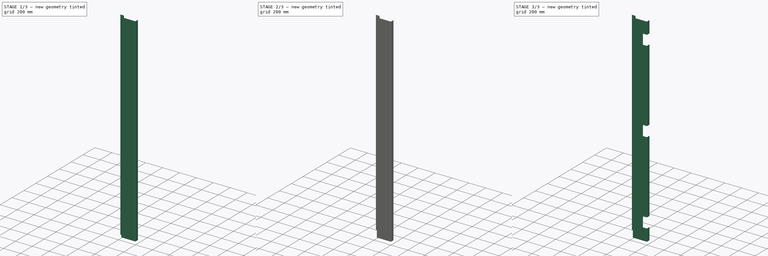
[diagram: build sequence overview — one tinted view per stage of 3, left to right]
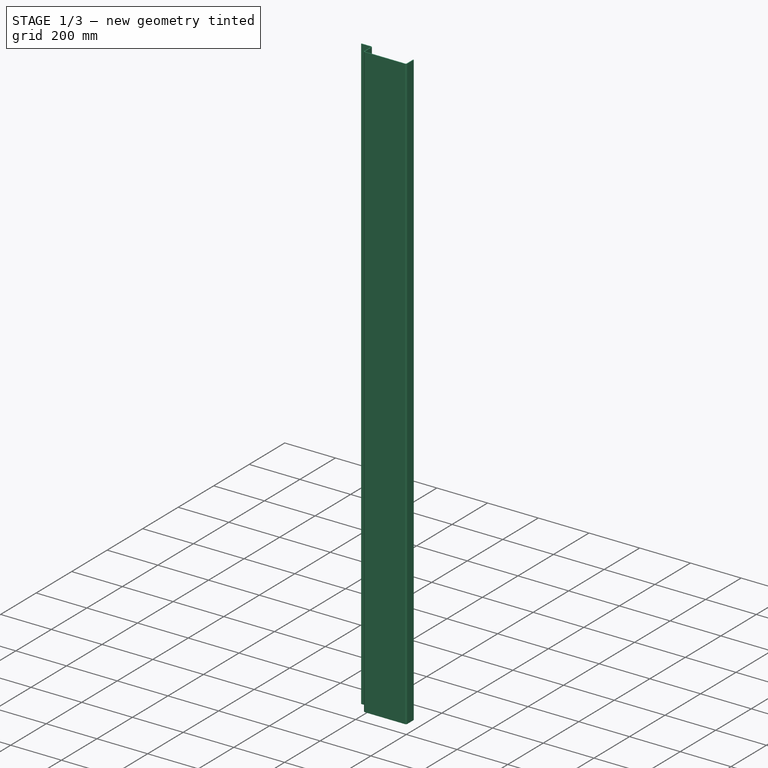
[diagram: stage 1 of 3 — iso view after this stage's code; geometry added in this stage tinted green]
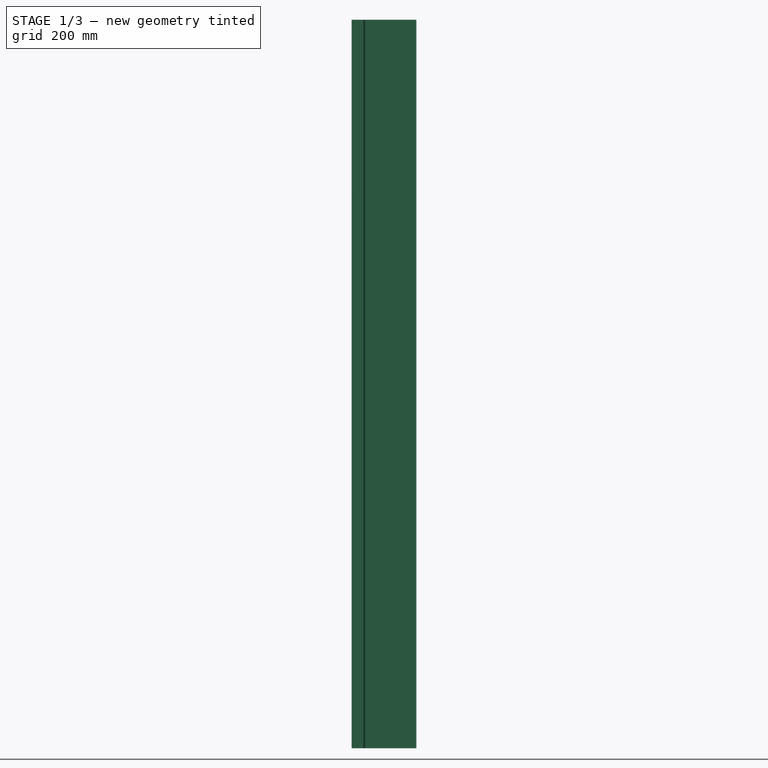
[diagram: stage 1 of 3 — front view after this stage's code; geometry added in this stage tinted green]
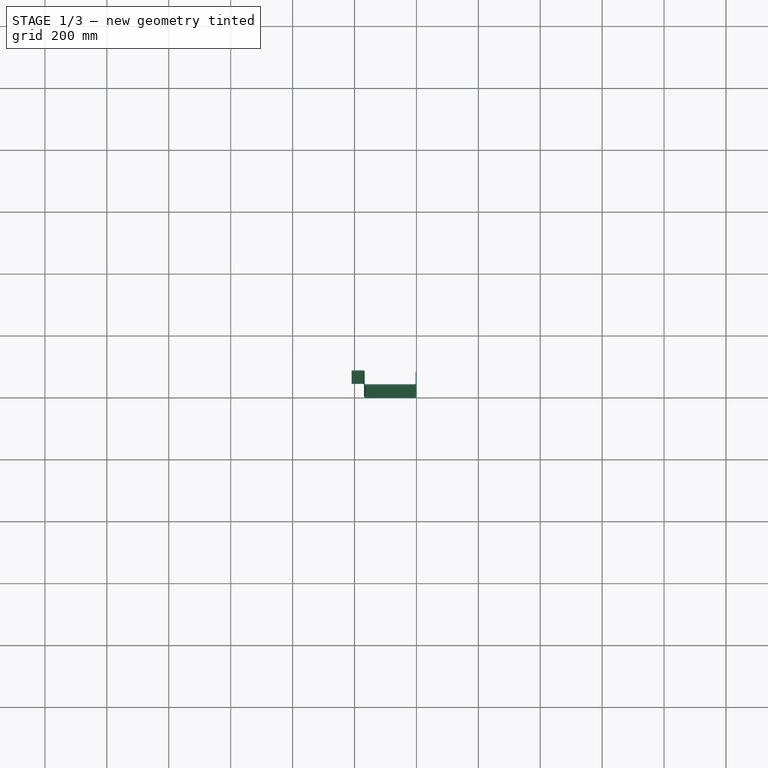
[diagram: stage 1 of 3 — top view after this stage's code; geometry added in this stage tinted green]
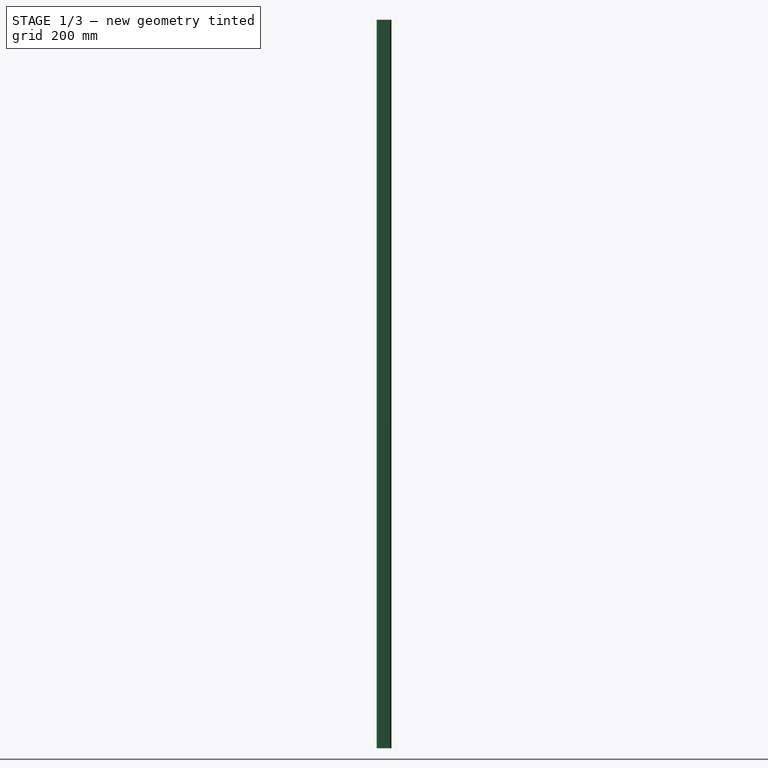
[diagram: stage 1 of 3 — right view after this stage's code; geometry added in this stage tinted green]
FCSTD DOCUMENT  (FreeCAD 0.18R4 (GitTag))
Label: front-member_vertical-2
License: All rights reserved
LicenseURL: http://en.wikipedia.org/wiki/All_rights_reserved
objects: Sketcher::SketchObject×4, PartDesign::Fillet×3, PartDesign::Pad×2, PartDesign::Pocket×2, PartDesign::LinearPattern×1, PartDesign::Body×1
note: 17 computed .brp shape members not serialized (recipe doc carries the construction recipe); baked Part::Feature solids carry a one-line shape summary decoded from their .brp

FEATURE [Sketcher::SketchObject] Sketch
  MapMode = 5
  Support = -> [XY_Plane]
  sketch-geometry (10):
    g0: LineSegment StartX=0 StartY=42 StartZ=0 EndX=0 EndY=0 EndZ=0
    g1: LineSegment StartX=0 StartY=0 StartZ=0 EndX=-169.5 EndY=0 EndZ=0
    g2: LineSegment StartX=-169.5 StartY=0 StartZ=0 EndX=-169.5 EndY=45 EndZ=0
    g3: LineSegment StartX=-3 StartY=42 StartZ=0 EndX=-3 EndY=3 EndZ=0
    g4: LineSegment StartX=-3 StartY=3 StartZ=0 EndX=-166.5 EndY=3 EndZ=0
    g5: LineSegment StartX=-166.5 StartY=3 StartZ=0 EndX=-166.5 EndY=48 EndZ=0
    g6: LineSegment StartX=-3 StartY=42 StartZ=0 EndX=0 EndY=42 EndZ=0
    g7: LineSegment StartX=-169.5 StartY=45 StartZ=0 EndX=-209.5 EndY=45 EndZ=0
    g8: LineSegment StartX=-209.5 StartY=45 StartZ=0 EndX=-209.5 EndY=48 EndZ=0
    g9: LineSegment StartX=-209.5 StartY=48 StartZ=0 EndX=-166.5 EndY=48 EndZ=0
  constraints (29):
    c: Coincident(g6,g0)
    c: Coincident(g0,g1)
    c: Coincident(g1,g2)
    c: Horizontal(g1)
    c: Vertical(g0)
    c: Vertical(g2)
    c: Coincident(g3,g4)
    c: Coincident(g4,g5)
    c: Horizontal(g4)
    c: Vertical(g3)
    c: Vertical(g5)
    c: Coincident(g3,g6)
    c: DistanceY(g0,g3) = 3
    c: DistanceX(g3,g0) = 3
    c: DistanceX(g1,g1) = 169.5
    c: Coincident(g7,g8)
    c: Coincident(g8,g9)
    c: Horizontal(g7)
    c: Horizontal(g9)
    c: Vertical(g8)
    c: DistanceY(g7,g8) = 3
    c: Coincident(g9,g5)
    c: DistanceX(g9,g9) = 43
    c: DistanceY(g1,g5) = 48
    c: Coincident(g2,g7)
    c: DistanceX(g2,g5) = 3
    c: DistanceY(g0,g0) = 42
    c: Horizontal(g6)
    c: Coincident(g0,g-1)
FEATURE [PartDesign::Pad] Pad
  Length = 2353
  Length2 = 100
  Profile = -> Sketch
  Refine = true
  Type = 0
FEATURE [PartDesign::Fillet] Fillet
  Base = -> Pad [Edge23,Edge26,Edge11]
  BaseFeature = -> Pad
  Radius = 3
FEATURE [PartDesign::Fillet] Fillet001
  Base = -> Fillet [Edge3,Edge19,Edge35]
  BaseFeature = -> Fillet
  Radius = 6
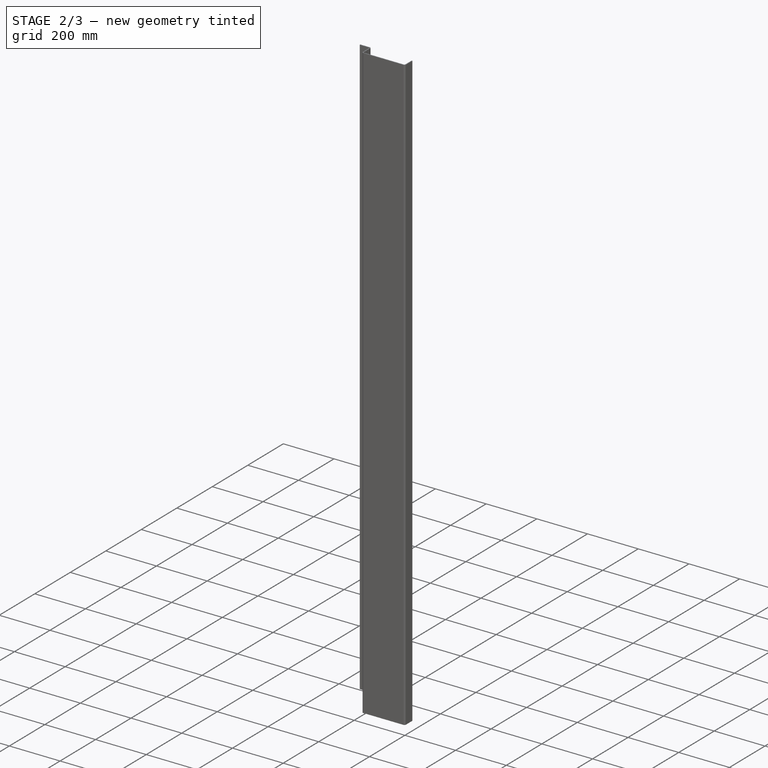
[diagram: stage 2 of 3 — iso view after this stage's code; geometry added in this stage tinted green]
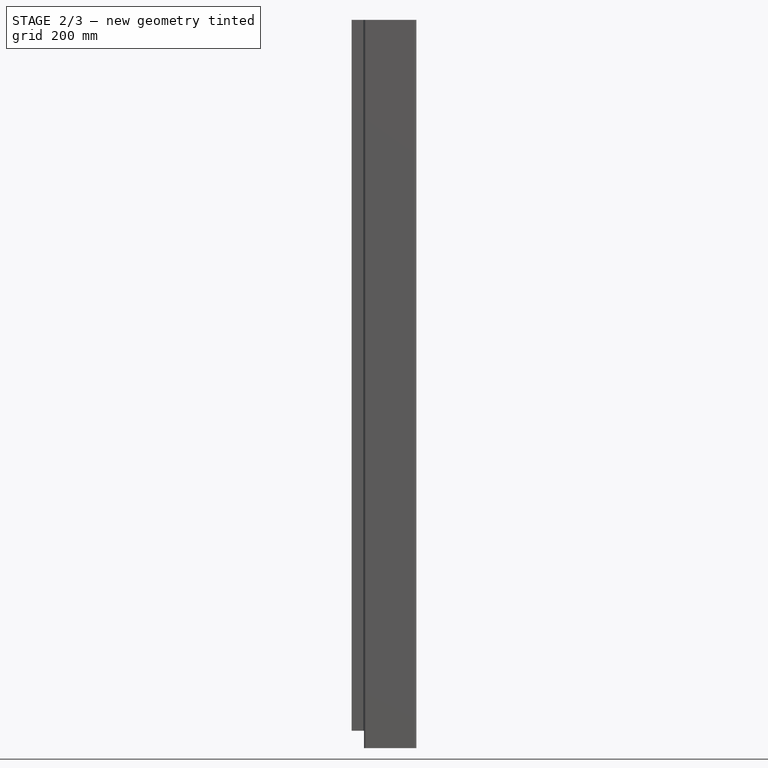
[diagram: stage 2 of 3 — front view after this stage's code; geometry added in this stage tinted green]
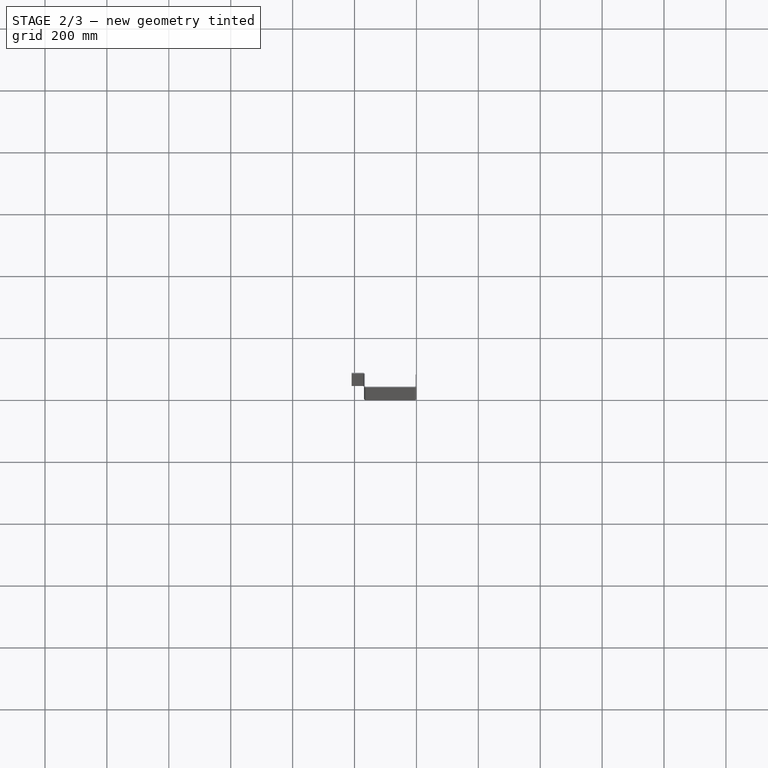
[diagram: stage 2 of 3 — top view after this stage's code; geometry added in this stage tinted green]
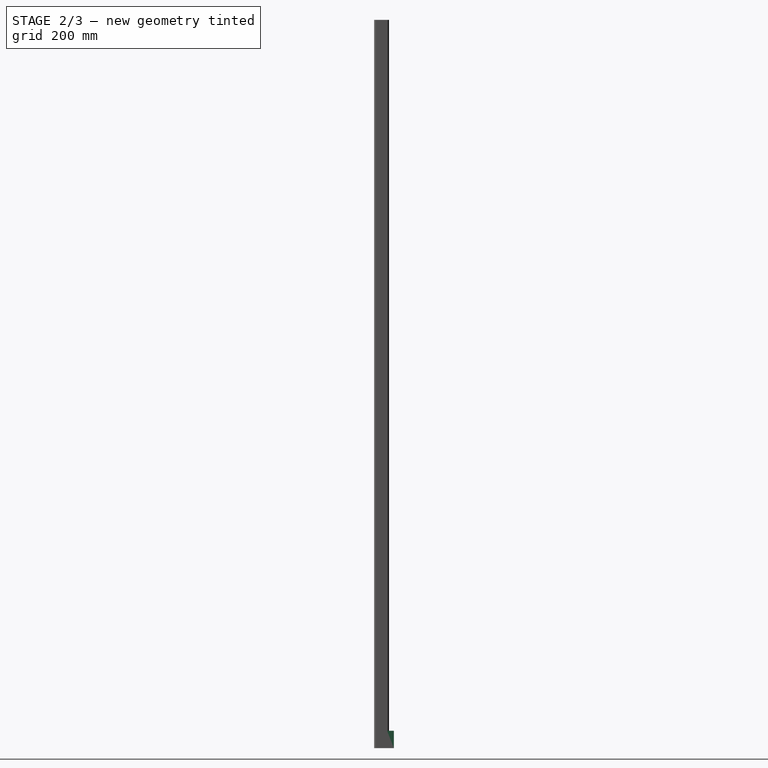
[diagram: stage 2 of 3 — right view after this stage's code; geometry added in this stage tinted green]
FEATURE [Sketcher::SketchObject] Sketch001
  ExternalGeometry = -> [Fillet001]
  MapMode = 5
  Placement = pos=(0,48,0) rot=(0,0.707107,0.707107;3.14159rad)
  Support = -> [Fillet001]
  sketch-geometry (4):
    g0: LineSegment StartX=166.5 StartY=0 StartZ=0 EndX=266.5 EndY=0 EndZ=0
    g1: LineSegment StartX=266.5 StartY=0 StartZ=0 EndX=266.5 EndY=56 EndZ=0
    g2: LineSegment StartX=266.5 StartY=56 StartZ=0 EndX=166.5 EndY=56 EndZ=0
    g3: LineSegment StartX=166.5 StartY=56 StartZ=0 EndX=166.5 EndY=0 EndZ=0
  constraints (11):
    c: Coincident(g0,g1)
    c: Coincident(g1,g2)
    c: Coincident(g2,g3)
    c: Coincident(g3,g0)
    c: Horizontal(g0)
    c: Horizontal(g2)
    c: Vertical(g1)
    c: Vertical(g3)
    c: Coincident(g0,g-4)
    c: DistanceY(g1,g1) = 56
    c: DistanceX(g0,g0) = 100
FEATURE [PartDesign::Pocket] Pocket
  BaseFeature = -> Fillet001
  Length = 6
  Length2 = 100
  Profile = -> Sketch001
  Refine = true
  Type = 0
FEATURE [Sketcher::SketchObject] Sketch002
  ExternalGeometry = -> [Pocket]
  MapMode = 5
  Placement = pos=(0,1.24e-14,56) rot=(1,0,0;3.14159rad)
  Support = -> [Pocket]
  sketch-geometry (4):
    g0: LineSegment StartX=-169.5 StartY=-42 StartZ=0 EndX=-166.5 EndY=-42 EndZ=0
    g1: LineSegment StartX=-166.5 StartY=-42 StartZ=0 EndX=-166.5 EndY=-64 EndZ=0
    g2: LineSegment StartX=-166.5 StartY=-64 StartZ=0 EndX=-169.5 EndY=-64 EndZ=0
    g3: LineSegment StartX=-169.5 StartY=-64 StartZ=0 EndX=-169.5 EndY=-42 EndZ=0
  constraints (11):
    c: Coincident(g0,g1)
    c: Coincident(g1,g2)
    c: Coincident(g2,g3)
    c: Coincident(g3,g0)
    c: Horizontal(g0)
    c: Horizontal(g2)
    c: Vertical(g1)
    c: Vertical(g3)
    c: Coincident(g0,g-3)
    c: PointOnObject(g-3,g1)
    c: DistanceY(g1,g1) = 22
FEATURE [PartDesign::Pad] Pad001
  BaseFeature = -> Pocket
  Length = 56
  Length2 = 100
  Profile = -> Sketch002
  Refine = true
  Type = 0
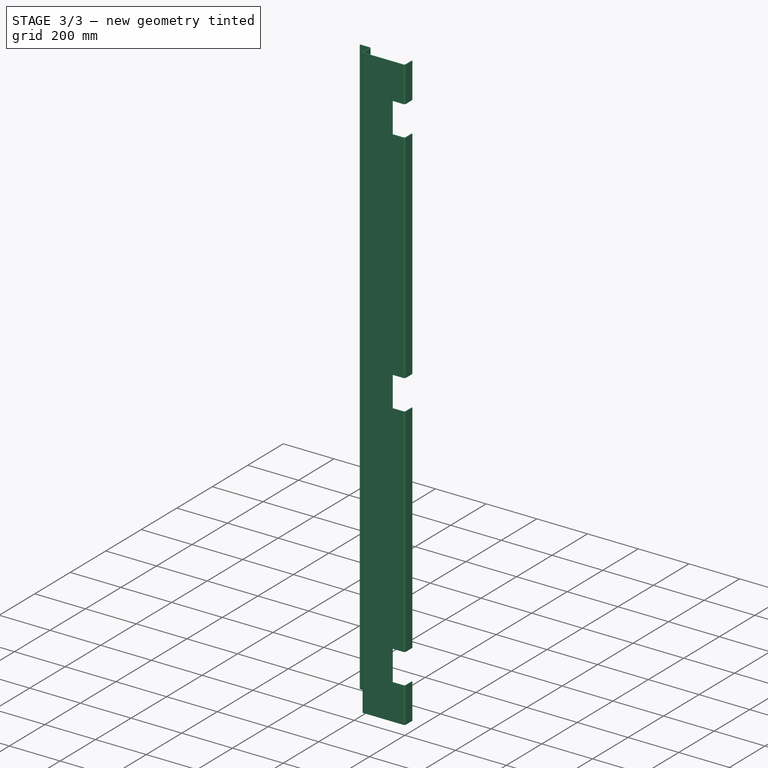
[diagram: stage 3 of 3 — iso view after this stage's code; geometry added in this stage tinted green]
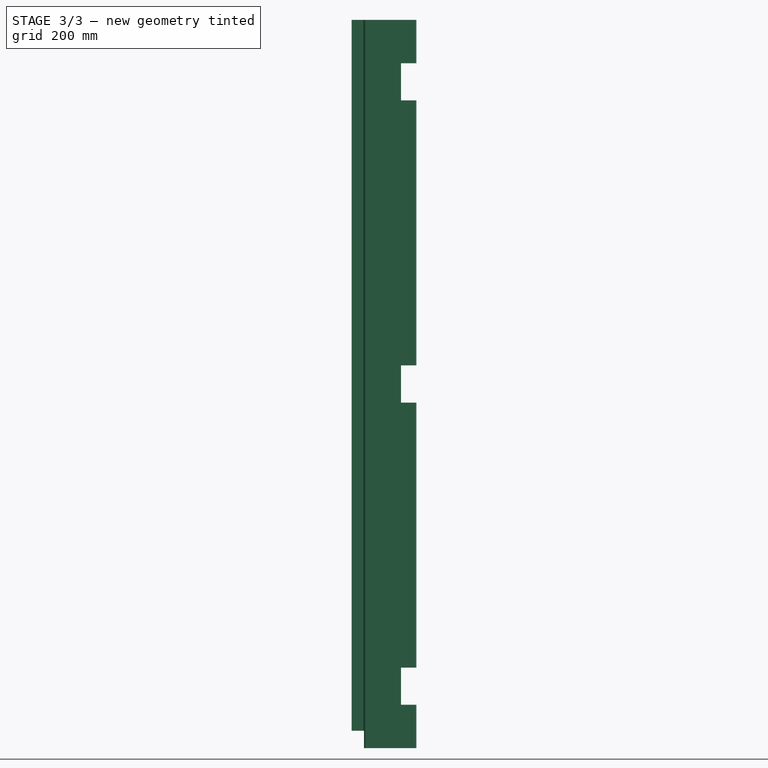
[diagram: stage 3 of 3 — front view after this stage's code; geometry added in this stage tinted green]
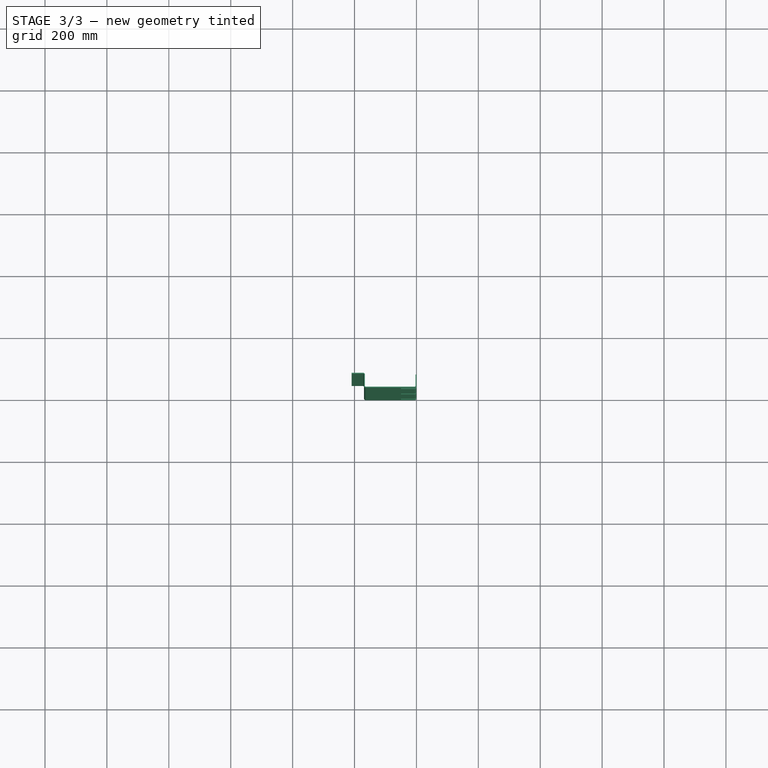
[diagram: stage 3 of 3 — top view after this stage's code; geometry added in this stage tinted green]
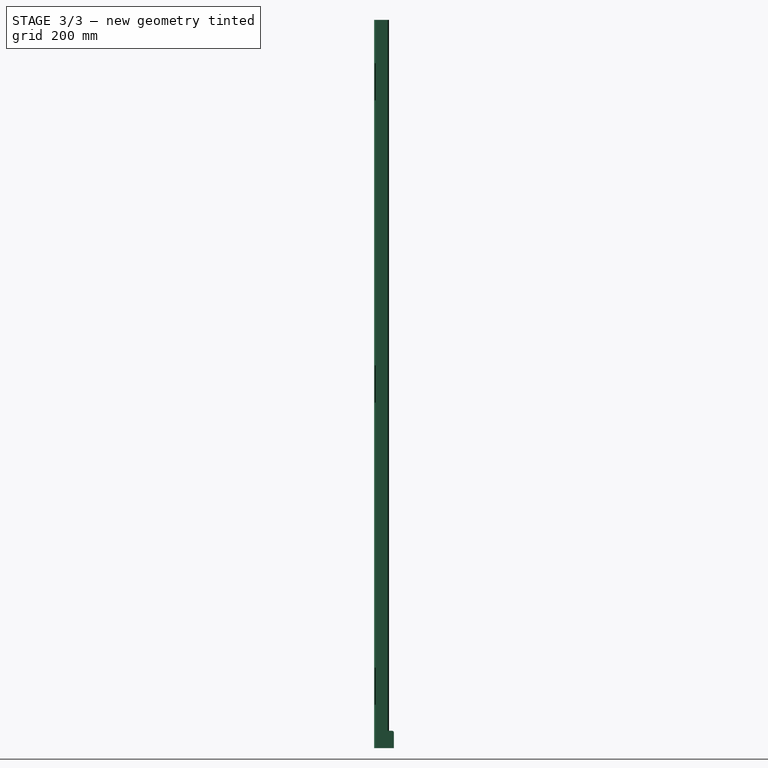
[diagram: stage 3 of 3 — right view after this stage's code; geometry added in this stage tinted green]
FEATURE [PartDesign::Fillet] Fillet002
  Base = -> Pad001 [Edge51]
  BaseFeature = -> Pad001
  Radius = 6
FEATURE [Sketcher::SketchObject] Sketch003
  MapMode = 5
  Placement = pos=(0,42,0) rot=(0,0.707107,0.707107;3.14159rad)
  Support = -> [Fillet002]
  sketch-geometry (4):
    g0: LineSegment StartX=0 StartY=140 StartZ=0 EndX=50 EndY=140 EndZ=0
    g1: LineSegment StartX=50 StartY=140 StartZ=0 EndX=50 EndY=260 EndZ=0
    g2: LineSegment StartX=50 StartY=260 StartZ=0 EndX=0 EndY=260 EndZ=0
    g3: LineSegment StartX=0 StartY=260 StartZ=0 EndX=0 EndY=140 EndZ=0
  constraints (12):
    c: Coincident(g0,g1)
    c: Coincident(g1,g2)
    c: Coincident(g2,g3)
    c: Coincident(g3,g0)
    c: Horizontal(g0)
    c: Horizontal(g2)
    c: Vertical(g1)
    c: Vertical(g3)
    c: PointOnObject(g-1,g3)
    c: DistanceX(g2,g2) = 50
    c: DistanceY(g1,g1) = 120
    c: DistanceY(g-1,g0) = 140
FEATURE [PartDesign::Pocket] Pocket001
  BaseFeature = -> Fillet002
  Length = 5
  Length2 = 100
  Profile = -> Sketch003
  Refine = true
  Type = 1
FEATURE [PartDesign::LinearPattern] LinearPattern
  BaseFeature = -> Pocket001
  Direction = -> Z_Axis
  Length = 1953
  Occurrences = 3
  Originals = -> [Pocket001]
  Refine = true
FEATURE [PartDesign::Body] Body
  Group = -> [Sketch,Pad,Fillet,Fillet001,Sketch001,Pocket,Sketch002,Pad001,Fillet002,Sketch003,Pocket001,LinearPattern]
  Origin = -> Origin
  Tip = -> LinearPattern
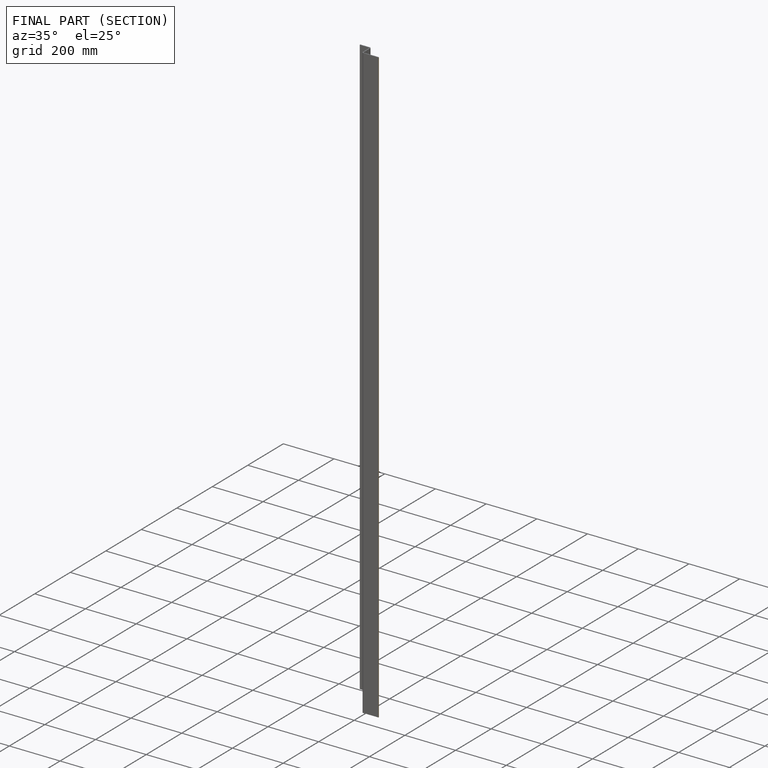
[diagram: finished part — half-section view (interior)]
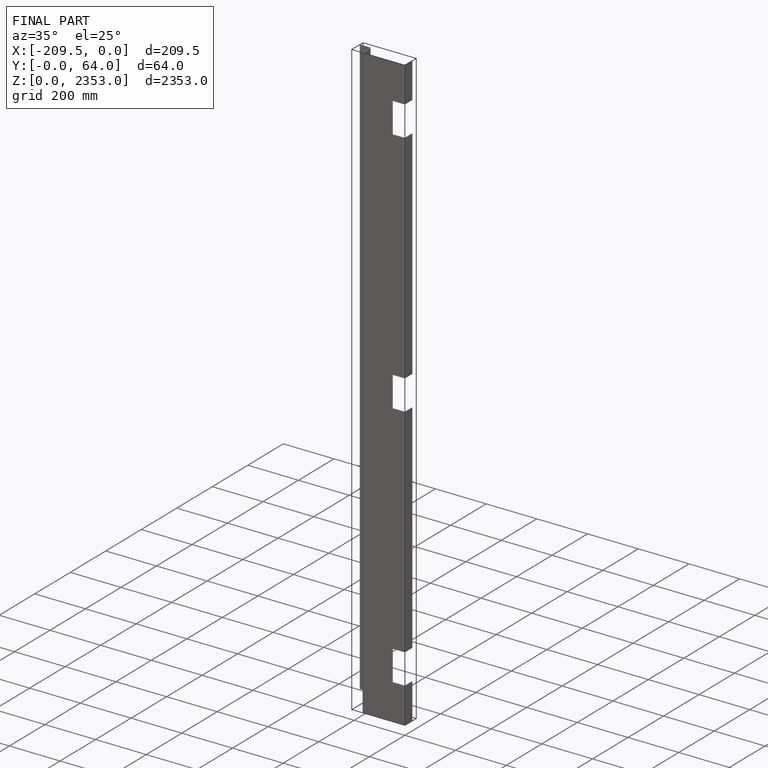
[diagram: finished part — iso view with bounding-box wireframe]
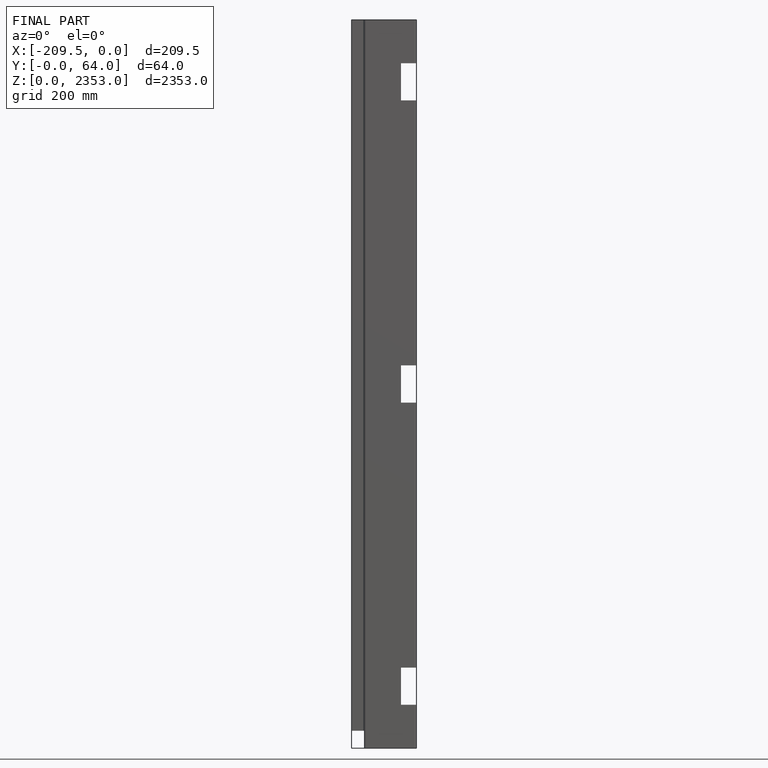
[diagram: finished part — front view with bounding-box wireframe]
